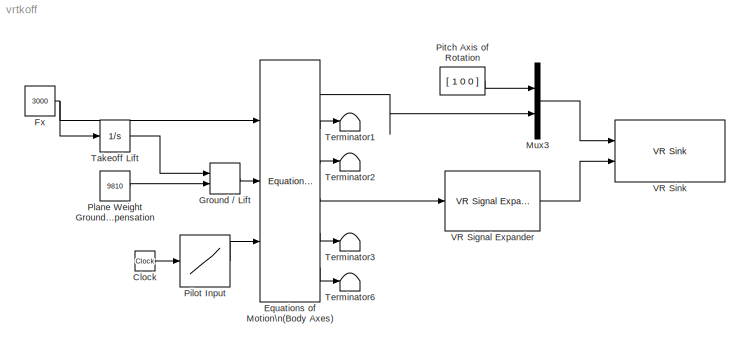
MODEL vrtkoff
KIND model
BLOCK [Reference]  Equations of Motion\n(Body Axes)  REF=aerospace/3DoF\nEquations\nof\nMotion / Equations of Motion\n(Body Axes)  (lib defined in mdl_cf564d925549, slx_1354fe9238a2, +3 more)
  Iyy = 1000
  Ports = [3, 6]
  ShowPortLabels = on
  SourceBlock = aerospace/3DoF\nEquations\nof\nMotion / Equations of Motion\n(Body Axes)
  SourceType = 3 DOF equations of motion
  alpha_ini = 0
  g = -9.81
  mass = 1000
  pos_ini = [0 0]
  q_ini = 0
  theta_ini = 0
  v_ini = 0
BLOCK [Clock] Clock
  Decimation = 10
BLOCK [Constant] Fx
  Value = 3000
BLOCK [MinMax] Ground // Lift
  Function = max
  Inputs = 2
  Ports = [2, 1]
  ZeroCross = off
BLOCK [Mux] Mux3
  DisplayOption = bar
  Inputs = 2
  Ports = [2, 1]
BLOCK [Lookup] Pilot Input
  DialogController = Simulink.DDGSource
  InputValues = [0 1 2 8 9 15]
  OutputValues = [0 0 -20 20 0 0]
BLOCK [Constant] Pitch Axis of Rotation
  Value = [ 1 0 0 ]
BLOCK [Constant] Plane Weight Ground \nCompensation
  Value = 9810
BLOCK [Integrator] Takeoff Lift
  LimitOutput = on
  LowerSaturationLimit = -Inf
  Ports = [1, 1]
  UpperSaturationLimit = 11000
  ZeroCross = off
BLOCK [Terminator] Terminator1
BLOCK [Terminator] Terminator2
BLOCK [Terminator] Terminator3
BLOCK [Terminator] Terminator6
BLOCK [Reference] VR Signal Expander  REF=vrlib/VR Signal Expander
  Ports = [1, 1]
  ShowPortLabels = on
  SourceBlock = vrlib/VR Signal Expander
  SourceType = VR Signal Expander
  outidx = [3 2]
  outwidth = 3
BLOCK [Reference] VR Sink  REF=vrlib/VR Sink
  AutoView = on
  FieldsWritten = Plane.rotation.4.1.double#Plane.translation.3.1.double
  Ports = [2]
  RemoteChange = off
  RemoteView = off
  SampleTime = 0.05
  SourceBlock = vrlib/VR Sink
  SourceType = Virtual Reality Sink
  ViewEnable = on
  WorldFileName = vrtkoff.wrl
LINE  Equations of Motion\n(Body Axes):1 -> Mux3:2
LINE  Equations of Motion\n(Body Axes):2 -> Terminator1:1
LINE  Equations of Motion\n(Body Axes):3 -> Terminator2:1
LINE  Equations of Motion\n(Body Axes):4 -> VR Signal Expander:1
LINE  Equations of Motion\n(Body Axes):5 -> Terminator3:1
LINE  Equations of Motion\n(Body Axes):6 -> Terminator6:1
LINE Clock:1 -> Pilot Input:1
NET Fx:1 ->  Equations of Motion\n(Body Axes):1, Takeoff Lift:1
LINE Ground // Lift:1 ->  Equations of Motion\n(Body Axes):2
LINE Mux3:1 -> VR Sink:1
LINE Pilot Input:1 ->  Equations of Motion\n(Body Axes):3
LINE Pitch Axis of Rotation:1 -> Mux3:1
LINE Plane Weight Ground \nCompensation:1 -> Ground // Lift:2
LINE Takeoff Lift:1 -> Ground // Lift:1
LINE VR Signal Expander:1 -> VR Sink:2
note: NET lines group one-source signal fan-out (src -> all destinations, sorted); 1:1 wires keep LINE
